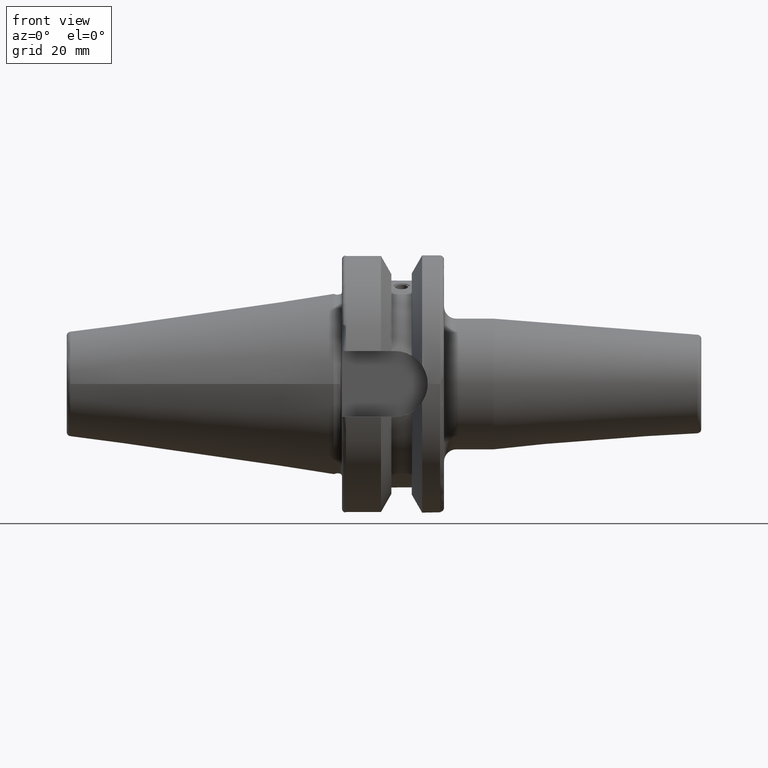
[diagram: clean part render]
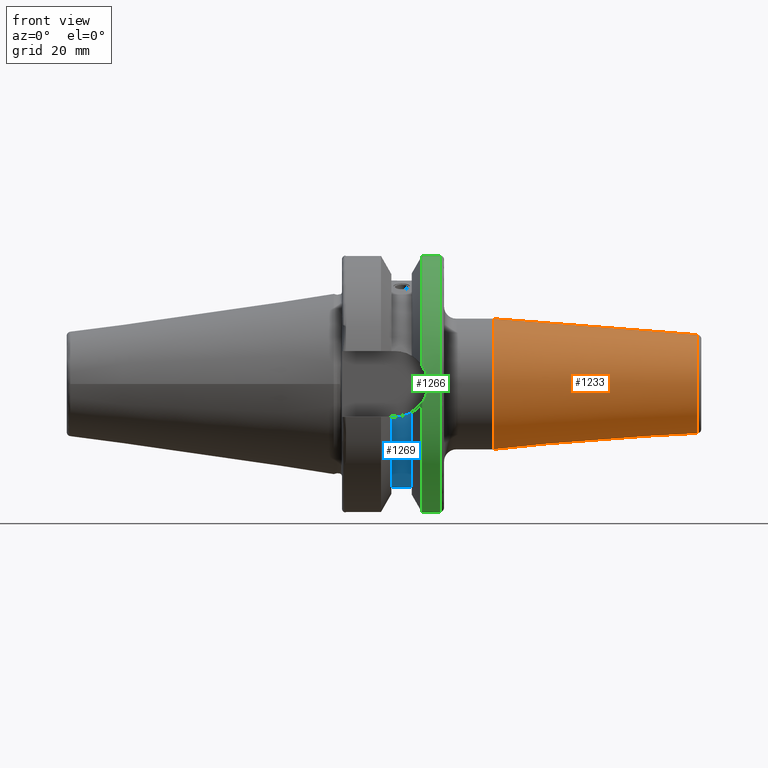
[diagram: same view with three faces highlighted in distinct colors, each labeled with its STEP entity id]
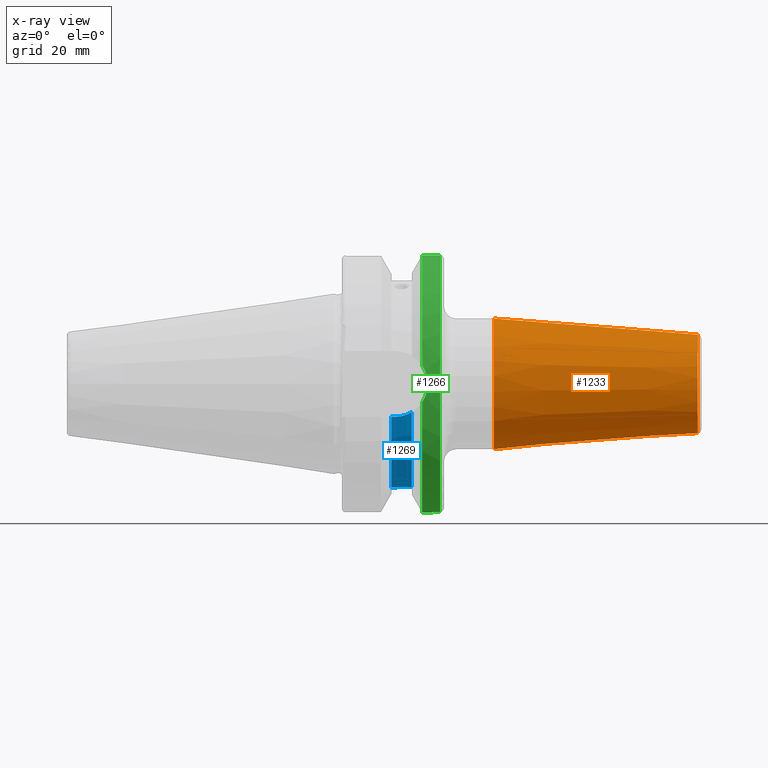
[diagram: x-ray of the same camera — body ghosted, the three highlighted faces saturated]
A machine part, front view with three faces highlighted in distinct colors.
The next image is the same camera in x-ray (body ghosted, the three faces saturated) — at least one of them is partly hidden behind the body in this view.
Their STEP definitions:

[orange] entity #1233 — the highlighted conical surface has half-angle 4.5 deg.
#122=CONICAL_SURFACE('',#1349,14.,0.0785398163397449);
#145=FACE_OUTER_BOUND('',#224,.T.);
#224=EDGE_LOOP('',(#869,#870,#871,#872));
#319=CIRCLE('',#1348,12.0725268420749);
#320=CIRCLE('',#1350,16.);
#388=LINE('',#1958,#454);
#454=VECTOR('',#1560,14.);
#528=VERTEX_POINT('',#1953);
#529=VERTEX_POINT('',#1957);
#659=EDGE_CURVE('',#528,#528,#319,.T.);
#660=EDGE_CURVE('',#528,#529,#388,.T.);
#661=EDGE_CURVE('',#529,#529,#320,.T.);
#869=ORIENTED_EDGE('',*,*,#659,.F.);
#870=ORIENTED_EDGE('',*,*,#660,.T.);
#871=ORIENTED_EDGE('',*,*,#661,.T.);
#872=ORIENTED_EDGE('',*,*,#660,.F.);
#1233=ADVANCED_FACE('',(#145),#122,.T.);
#1348=AXIS2_PLACEMENT_3D('',#1955,#1556,#1557);
#1349=AXIS2_PLACEMENT_3D('',#1956,#1558,#1559);
#1350=AXIS2_PLACEMENT_3D('',#1959,#1561,#1562);
#1556=DIRECTION('center_axis',(1.,0.,0.));
#1557=DIRECTION('ref_axis',(0.,0.,1.));
#1558=DIRECTION('center_axis',(-1.,0.,0.));
#1559=DIRECTION('ref_axis',(0.,0.,-1.));
#1560=DIRECTION('',(-0.996917333733128,-9.60846804471011E-18,0.078459095727845));
#1561=DIRECTION('center_axis',(1.,0.,0.));
#1562=DIRECTION('ref_axis',(0.,0.,-1.));
#1953=CARTESIAN_POINT('',(89.0784590957279,-1.47845813547676E-15,12.0725268420749));
#1955=CARTESIAN_POINT('Origin',(89.0784590957279,-1.47845813547676E-15,
0.));
#1956=CARTESIAN_POINT('Origin',(64.5875905276506,0.,0.));
#1957=CARTESIAN_POINT('',(39.1751810553012,-1.95943487863577E-15,16.));
#1958=CARTESIAN_POINT('',(64.5875905276506,-1.71450551880629E-15,14.));
#1959=CARTESIAN_POINT('Origin',(39.1751810553012,0.,0.));

[blue] entity #1269 — the highlighted cylindrical surface (partial cylindrical patch) has radius 25.5 mm, axis along (1, 0, 0).
#25=B_SPLINE_CURVE_WITH_KNOTS('',3,(#2177,#2178,#2179,#2180,#2181,#2182,
#2183,#2184,#2185,#2186,#2187,#2188,#2189,#2190,#2191,#2192,#2193,#2194,
#2195,#2196,#2197,#2198,#2199,#2200,#2201,#2202),.UNSPECIFIED.,.F.,.F.,
(4,2,2,2,2,2,2,2,2,2,2,2,4),(0.,0.0753706034311402,0.15074120686228,0.226111713565585,
0.301482220268889,0.376852726972193,0.452223233675497,0.527593837106637,
0.602964440537777,0.678335043968917,0.753705647400058,0.829076154103362,
0.904446660806666),.UNSPECIFIED.);
#26=B_SPLINE_CURVE_WITH_KNOTS('',3,(#2203,#2204,#2205,#2206,#2207,#2208,
#2209,#2210,#2211,#2212),.UNSPECIFIED.,.F.,.F.,(4,2,2,2,4),(0.904446660806666,
0.97981716750997,1.05518767421327,1.13055827764441,1.20592888107555),
 .UNSPECIFIED.);
#27=B_SPLINE_CURVE_WITH_KNOTS('',3,(#2238,#2239,#2240,#2241,#2242,#2243),
 .UNSPECIFIED.,.F.,.F.,(4,2,4),(2.02525951614585,2.13846497015446,2.44402436414645),
 .UNSPECIFIED.);
#37=B_SPLINE_CURVE_WITH_KNOTS('',3,(#2378,#2379,#2380,#2381,#2382,#2383),
 .UNSPECIFIED.,.F.,.F.,(4,2,4),(2.44402436414645,2.74958375813844,2.86278921214705),
 .UNSPECIFIED.);
#54=FACE_BOUND('',#270,.T.);
#112=CYLINDRICAL_SURFACE('',#1432,25.5);
#181=FACE_OUTER_BOUND('',#269,.T.);
#269=EDGE_LOOP('',(#1051,#1052,#1053,#1054,#1055,#1056));
#270=EDGE_LOOP('',(#1057,#1058));
#348=CIRCLE('',#1431,25.5);
#349=CIRCLE('',#1433,25.5);
#418=LINE('',#2315,#484);
#426=LINE('',#2377,#492);
#484=VECTOR('',#1734,10.);
#492=VECTOR('',#1766,10.);
#566=VERTEX_POINT('',#2174);
#567=VERTEX_POINT('',#2176);
#574=VERTEX_POINT('',#2236);
#575=VERTEX_POINT('',#2237);
#591=VERTEX_POINT('',#2314);
#602=VERTEX_POINT('',#2370);
#603=VERTEX_POINT('',#2374);
#604=VERTEX_POINT('',#2376);
#717=EDGE_CURVE('',#567,#566,#25,.T.);
#718=EDGE_CURVE('',#566,#567,#26,.T.);
#729=EDGE_CURVE('',#574,#575,#27,.T.);
#747=EDGE_CURVE('',#575,#591,#418,.T.);
#763=EDGE_CURVE('',#574,#602,#348,.T.);
#765=EDGE_CURVE('',#591,#603,#349,.T.);
#766=EDGE_CURVE('',#603,#604,#426,.T.);
#767=EDGE_CURVE('',#604,#602,#37,.T.);
#1051=ORIENTED_EDGE('',*,*,#729,.T.);
#1052=ORIENTED_EDGE('',*,*,#747,.T.);
#1053=ORIENTED_EDGE('',*,*,#765,.T.);
#1054=ORIENTED_EDGE('',*,*,#766,.T.);
#1055=ORIENTED_EDGE('',*,*,#767,.T.);
#1056=ORIENTED_EDGE('',*,*,#763,.F.);
#1057=ORIENTED_EDGE('',*,*,#717,.T.);
#1058=ORIENTED_EDGE('',*,*,#718,.T.);
#1269=ADVANCED_FACE('',(#181,#54),#112,.T.);
#1431=AXIS2_PLACEMENT_3D('',#2371,#1759,#1760);
#1432=AXIS2_PLACEMENT_3D('',#2373,#1762,#1763);
#1433=AXIS2_PLACEMENT_3D('',#2375,#1764,#1765);
#1734=DIRECTION('',(-1.,0.,0.));
#1759=DIRECTION('center_axis',(1.,0.,0.));
#1760=DIRECTION('ref_axis',(0.,0.,-1.));
#1762=DIRECTION('center_axis',(1.,0.,0.));
#1763=DIRECTION('ref_axis',(0.,1.,0.));
#1764=DIRECTION('center_axis',(1.,0.,0.));
#1765=DIRECTION('ref_axis',(0.,0.,-1.));
#1766=DIRECTION('',(1.,0.,0.));
#2174=CARTESIAN_POINT('',(18.6,8.72151365480455,-23.9621618300407));
#2176=CARTESIAN_POINT('',(16.6,10.5740324061887,-23.2043064682587));
#2177=CARTESIAN_POINT('Ctrl Pts',(16.6,10.5740324061887,-23.2043064682587));
#2178=CARTESIAN_POINT('Ctrl Pts',(16.3487646552295,10.5740324061887,-23.2043064682587));
#2179=CARTESIAN_POINT('Ctrl Pts',(16.0808539398032,10.5282360748462,-23.2253464640325));
#2180=CARTESIAN_POINT('Ctrl Pts',(15.5881259002915,10.341480204317,-23.3091025219309));
#2181=CARTESIAN_POINT('Ctrl Pts',(15.3632997889944,10.2004525041704,-23.3716147691749));
#2182=CARTESIAN_POINT('Ctrl Pts',(15.0082733140735,9.87358134491179,-23.5115716095889));
#2183=CARTESIAN_POINT('Ctrl Pts',(14.8543700008966,9.66590292532593,-23.5983277097944));
#2184=CARTESIAN_POINT('Ctrl Pts',(14.6502304925719,9.20795105223416,-23.78075666331));
#2185=CARTESIAN_POINT('Ctrl Pts',(14.6,8.95759735138452,-23.87623439169));
#2186=CARTESIAN_POINT('Ctrl Pts',(14.6,8.48542995822459,-24.0480892683913));
#2187=CARTESIAN_POINT('Ctrl Pts',(14.6502304925719,8.23227599607073,-24.1358733420695));
#2188=CARTESIAN_POINT('Ctrl Pts',(14.8543700008966,7.76420143750494,-24.290490445821));
#2189=CARTESIAN_POINT('Ctrl Pts',(15.0082733140735,7.54934479194869,-24.357524532261));
#2190=CARTESIAN_POINT('Ctrl Pts',(15.3632997889944,7.20898443387373,-24.4604201035206));
#2191=CARTESIAN_POINT('Ctrl Pts',(15.5881259002915,7.0607688498685,-24.5031838021693));
#2192=CARTESIAN_POINT('Ctrl Pts',(16.0808539398032,6.86386819677648,-24.5590672990511));
#2193=CARTESIAN_POINT('Ctrl Pts',(16.3487646552295,6.81526192304506,-24.5723870415614));
#2194=CARTESIAN_POINT('Ctrl Pts',(16.8512353447705,6.81526192304506,-24.5723870415614));
#2195=CARTESIAN_POINT('Ctrl Pts',(17.1191460601968,6.86386819677648,-24.5590672990511));
#2196=CARTESIAN_POINT('Ctrl Pts',(17.6118740997085,7.0607688498685,-24.5031838021693));
#2197=CARTESIAN_POINT('Ctrl Pts',(17.8367002110056,7.20898443387373,-24.4604201035206));
#2198=CARTESIAN_POINT('Ctrl Pts',(18.1917266859265,7.54934479194869,-24.357524532261));
#2199=CARTESIAN_POINT('Ctrl Pts',(18.3456299991034,7.76420143750494,-24.290490445821));
#2200=CARTESIAN_POINT('Ctrl Pts',(18.5497695074281,8.23227599607073,-24.1358733420695));
#2201=CARTESIAN_POINT('Ctrl Pts',(18.6,8.48542995822459,-24.0480892683913));
#2202=CARTESIAN_POINT('Ctrl Pts',(18.6,8.72151365480455,-23.9621618300407));
#2203=CARTESIAN_POINT('Ctrl Pts',(18.6,8.72151365480455,-23.9621618300407));
#2204=CARTESIAN_POINT('Ctrl Pts',(18.6,8.95759735138452,-23.87623439169));
#2205=CARTESIAN_POINT('Ctrl Pts',(18.5497695074281,9.20795105223416,-23.78075666331));
#2206=CARTESIAN_POINT('Ctrl Pts',(18.3456299991034,9.66590292532593,-23.5983277097944));
#2207=CARTESIAN_POINT('Ctrl Pts',(18.1917266859265,9.87358134491179,-23.5115716095889));
#2208=CARTESIAN_POINT('Ctrl Pts',(17.8367002110056,10.2004525041704,-23.3716147691749));
#2209=CARTESIAN_POINT('Ctrl Pts',(17.6118740997085,10.341480204317,-23.3091025219309));
#2210=CARTESIAN_POINT('Ctrl Pts',(17.1191460601968,10.5282360748462,-23.2253464640325));
#2211=CARTESIAN_POINT('Ctrl Pts',(16.8512353447705,10.5740324061887,-23.2043064682587));
#2212=CARTESIAN_POINT('Ctrl Pts',(16.6,10.5740324061887,-23.2043064682587));
#2236=CARTESIAN_POINT('',(19.1,-24.5493380766162,-6.89782574439221));
#2237=CARTESIAN_POINT('',(14.95,-24.1960224003864,-8.05));
#2238=CARTESIAN_POINT('Ctrl Pts',(19.1,-24.5493380766162,-6.89782574439221));
#2239=CARTESIAN_POINT('Ctrl Pts',(18.7625417379862,-24.492291659194,-7.10085374759973));
#2240=CARTESIAN_POINT('Ctrl Pts',(18.4072379028184,-24.4390565244262,-7.28065599998141));
#2241=CARTESIAN_POINT('Ctrl Pts',(17.0497516664971,-24.2670783971366,-7.84501312719341));
#2242=CARTESIAN_POINT('Ctrl Pts',(15.9685313133066,-24.1960224003864,-8.05));
#2243=CARTESIAN_POINT('Ctrl Pts',(14.95,-24.1960224003864,-8.05));
#2314=CARTESIAN_POINT('',(14.1,-24.1960224003864,-8.05));
#2315=CARTESIAN_POINT('',(16.6,-24.1960224003864,-8.05));
#2370=CARTESIAN_POINT('',(19.1,24.5493380766162,-6.89782574439221));
#2371=CARTESIAN_POINT('Origin',(19.1,0.,0.));
#2373=CARTESIAN_POINT('Origin',(16.6,0.,0.));
#2374=CARTESIAN_POINT('',(14.1,24.1960224003864,-8.05));
#2375=CARTESIAN_POINT('Origin',(14.1,0.,0.));
#2376=CARTESIAN_POINT('',(14.95,24.1960224003864,-8.05));
#2377=CARTESIAN_POINT('',(16.6,24.1960224003864,-8.05));
#2378=CARTESIAN_POINT('Ctrl Pts',(14.95,24.1960224003864,-8.05));
#2379=CARTESIAN_POINT('Ctrl Pts',(15.9685313133066,24.1960224003864,-8.05));
#2380=CARTESIAN_POINT('Ctrl Pts',(17.0497516664971,24.2670783971366,-7.84501312719341));
#2381=CARTESIAN_POINT('Ctrl Pts',(18.4072379028184,24.4390565244262,-7.28065599998141));
#2382=CARTESIAN_POINT('Ctrl Pts',(18.7625417379862,24.492291659194,-7.10085374759973));
#2383=CARTESIAN_POINT('Ctrl Pts',(19.1,24.5493380766162,-6.89782574439221));

[green] entity #1266 — the highlighted cylindrical surface (bore or boss wall) has radius 31.5 mm, axis along (1, 0, 0).
#29=B_SPLINE_CURVE_WITH_KNOTS('',3,(#2254,#2255,#2256,#2257,#2258,#2259),
 .UNSPECIFIED.,.F.,.F.,(4,2,4),(1.21877751840372,1.52344857393281,1.67526011710938),
 .UNSPECIFIED.);
#30=B_SPLINE_CURVE_WITH_KNOTS('',3,(#2261,#2262,#2263,#2264,#2265,#2266),
 .UNSPECIFIED.,.F.,.F.,(4,2,4),(0.762294919698051,0.914106462874623,1.21877751840372),
 .UNSPECIFIED.);
#35=B_SPLINE_CURVE_WITH_KNOTS('',3,(#2348,#2349,#2350,#2351,#2352,#2353,
#2354,#2355,#2356,#2357),.UNSPECIFIED.,.F.,.F.,(4,2,2,2,4),(3.19984995650548,
3.35166149968206,3.65633255521115,3.96100361074024,4.11281515391681),
 .UNSPECIFIED.);
#111=CYLINDRICAL_SURFACE('',#1423,31.5);
#178=FACE_OUTER_BOUND('',#266,.T.);
#266=EDGE_LOOP('',(#1034,#1035,#1036,#1037,#1038,#1039,#1040,#1041,#1042));
#343=CIRCLE('',#1424,31.5);
#344=CIRCLE('',#1425,31.5);
#345=CIRCLE('',#1426,31.5);
#346=CIRCLE('',#1427,31.5);
#424=LINE('',#2344,#490);
#490=VECTOR('',#1746,31.5);
#577=VERTEX_POINT('',#2246);
#578=VERTEX_POINT('',#2253);
#579=VERTEX_POINT('',#2260);
#597=VERTEX_POINT('',#2341);
#598=VERTEX_POINT('',#2342);
#599=VERTEX_POINT('',#2345);
#600=VERTEX_POINT('',#2347);
#732=EDGE_CURVE('',#578,#577,#29,.T.);
#733=EDGE_CURVE('',#579,#578,#30,.T.);
#755=EDGE_CURVE('',#597,#598,#343,.T.);
#756=EDGE_CURVE('',#597,#578,#424,.T.);
#757=EDGE_CURVE('',#577,#599,#344,.T.);
#758=EDGE_CURVE('',#599,#600,#35,.T.);
#759=EDGE_CURVE('',#600,#579,#345,.T.);
#760=EDGE_CURVE('',#598,#597,#346,.T.);
#1034=ORIENTED_EDGE('',*,*,#755,.F.);
#1035=ORIENTED_EDGE('',*,*,#756,.T.);
#1036=ORIENTED_EDGE('',*,*,#732,.T.);
#1037=ORIENTED_EDGE('',*,*,#757,.T.);
#1038=ORIENTED_EDGE('',*,*,#758,.T.);
#1039=ORIENTED_EDGE('',*,*,#759,.T.);
#1040=ORIENTED_EDGE('',*,*,#733,.T.);
#1041=ORIENTED_EDGE('',*,*,#756,.F.);
#1042=ORIENTED_EDGE('',*,*,#760,.F.);
#1266=ADVANCED_FACE('',(#178),#111,.T.);
#1423=AXIS2_PLACEMENT_3D('',#2340,#1742,#1743);
#1424=AXIS2_PLACEMENT_3D('',#2343,#1744,#1745);
#1425=AXIS2_PLACEMENT_3D('',#2346,#1747,#1748);
#1426=AXIS2_PLACEMENT_3D('',#2358,#1749,#1750);
#1427=AXIS2_PLACEMENT_3D('',#2359,#1751,#1752);
#1742=DIRECTION('center_axis',(1.,0.,0.));
#1743=DIRECTION('ref_axis',(0.,1.,0.));
#1744=DIRECTION('center_axis',(1.,0.,0.));
#1745=DIRECTION('ref_axis',(0.,0.,-1.));
#1746=DIRECTION('',(-1.,0.,0.));
#1747=DIRECTION('center_axis',(1.,0.,0.));
#1748=DIRECTION('ref_axis',(0.,0.,-1.));
#1749=DIRECTION('center_axis',(1.,0.,0.));
#1750=DIRECTION('ref_axis',(0.,0.,-1.));
#1751=DIRECTION('center_axis',(1.,0.,0.));
#1752=DIRECTION('ref_axis',(0.,0.,-1.));
#2246=CARTESIAN_POINT('',(21.6309636926618,-31.1782420264945,-4.4907932637046));
#2253=CARTESIAN_POINT('',(23.,-31.5,-1.51248507442265E-15));
#2254=CARTESIAN_POINT('Ctrl Pts',(23.,-31.5,8.32667268468867E-16));
#2255=CARTESIAN_POINT('Ctrl Pts',(23.,-31.5,-1.01557018509698));
#2256=CARTESIAN_POINT('Ctrl Pts',(22.7961189876535,-31.445974204441,-2.09580170425552));
#2257=CARTESIAN_POINT('Ctrl Pts',(22.1796133812044,-31.2997625705024,-3.58065358198869));
#2258=CARTESIAN_POINT('Ctrl Pts',(21.92482980253,-31.2412125047166,-4.05360796141051));
#2259=CARTESIAN_POINT('Ctrl Pts',(21.6309636926618,-31.1782420264945,-4.4907932637046));
#2260=CARTESIAN_POINT('',(21.6309636926618,-31.1782420264945,4.4907932637046));
#2261=CARTESIAN_POINT('Ctrl Pts',(21.6309636926618,-31.1782420264945,4.4907932637046));
#2262=CARTESIAN_POINT('Ctrl Pts',(21.92482980253,-31.2412125047166,4.05360796141051));
#2263=CARTESIAN_POINT('Ctrl Pts',(22.1796133812044,-31.2997625705024,3.58065358198869));
#2264=CARTESIAN_POINT('Ctrl Pts',(22.7961189876535,-31.445974204441,2.09580170425552));
#2265=CARTESIAN_POINT('Ctrl Pts',(23.,-31.5,1.01557018509698));
#2266=CARTESIAN_POINT('Ctrl Pts',(23.,-31.5,-2.77555756156289E-16));
#2340=CARTESIAN_POINT('Origin',(23.8154818463309,0.,0.));
#2341=CARTESIAN_POINT('',(26.,-31.5,-3.85763741731416E-15));
#2342=CARTESIAN_POINT('',(26.,-3.85763741731416E-15,31.5));
#2343=CARTESIAN_POINT('Origin',(26.,0.,0.));
#2344=CARTESIAN_POINT('',(23.8154818463309,-31.5,-3.85763741731416E-15));
#2345=CARTESIAN_POINT('',(21.6309636926618,31.1782420264945,-4.4907932637046));
#2346=CARTESIAN_POINT('Origin',(21.6309636926618,0.,0.));
#2347=CARTESIAN_POINT('',(21.6309636926618,31.1782420264945,4.4907932637046));
#2348=CARTESIAN_POINT('Ctrl Pts',(21.6309636926618,31.1782420264945,-4.4907932637046));
#2349=CARTESIAN_POINT('Ctrl Pts',(21.92482980253,31.2412125047166,-4.05360796141051));
#2350=CARTESIAN_POINT('Ctrl Pts',(22.1796133812044,31.2997625705024,-3.58065358198869));
#2351=CARTESIAN_POINT('Ctrl Pts',(22.7961189876535,31.445974204441,-2.09580170425552));
#2352=CARTESIAN_POINT('Ctrl Pts',(23.,31.5,-1.01557018509698));
#2353=CARTESIAN_POINT('Ctrl Pts',(23.,31.5,1.01557018509698));
#2354=CARTESIAN_POINT('Ctrl Pts',(22.7961189876535,31.445974204441,2.09580170425552));
#2355=CARTESIAN_POINT('Ctrl Pts',(22.1796133812044,31.2997625705024,3.58065358198869));
#2356=CARTESIAN_POINT('Ctrl Pts',(21.92482980253,31.2412125047166,4.05360796141051));
#2357=CARTESIAN_POINT('Ctrl Pts',(21.6309636926618,31.1782420264945,4.4907932637046));
#2358=CARTESIAN_POINT('Origin',(21.6309636926618,0.,0.));
#2359=CARTESIAN_POINT('Origin',(26.,0.,0.));